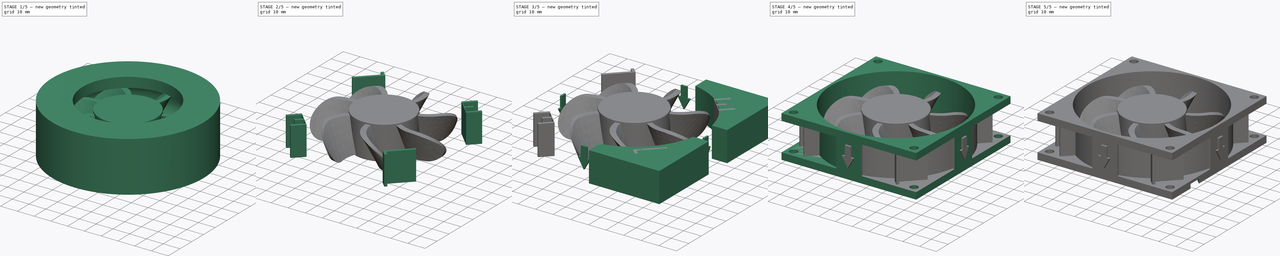
[diagram: build sequence overview — one tinted view per stage of 5, left to right]
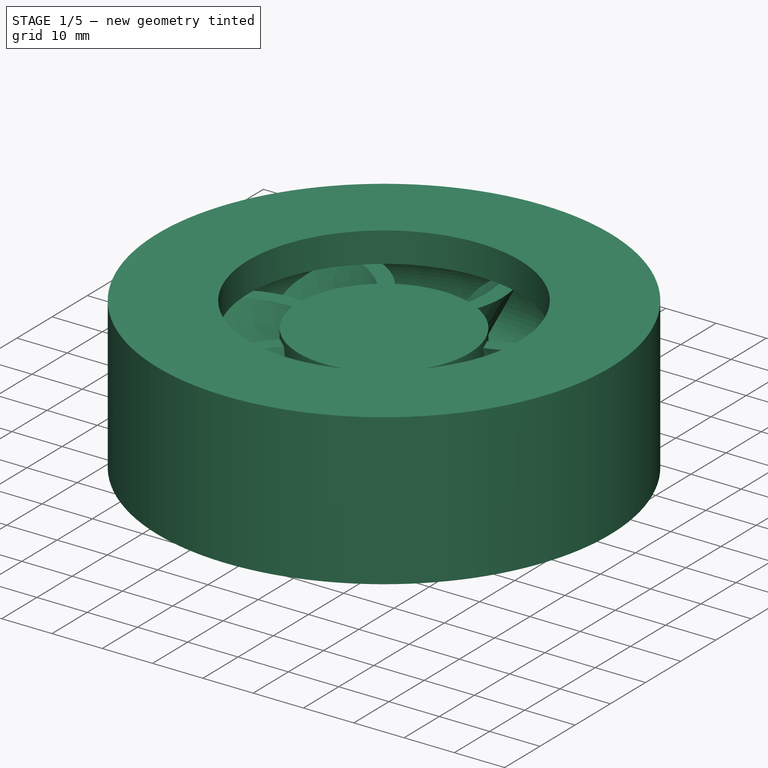
[diagram: stage 1 of 5 — iso view after this stage's code; geometry added in this stage tinted green]
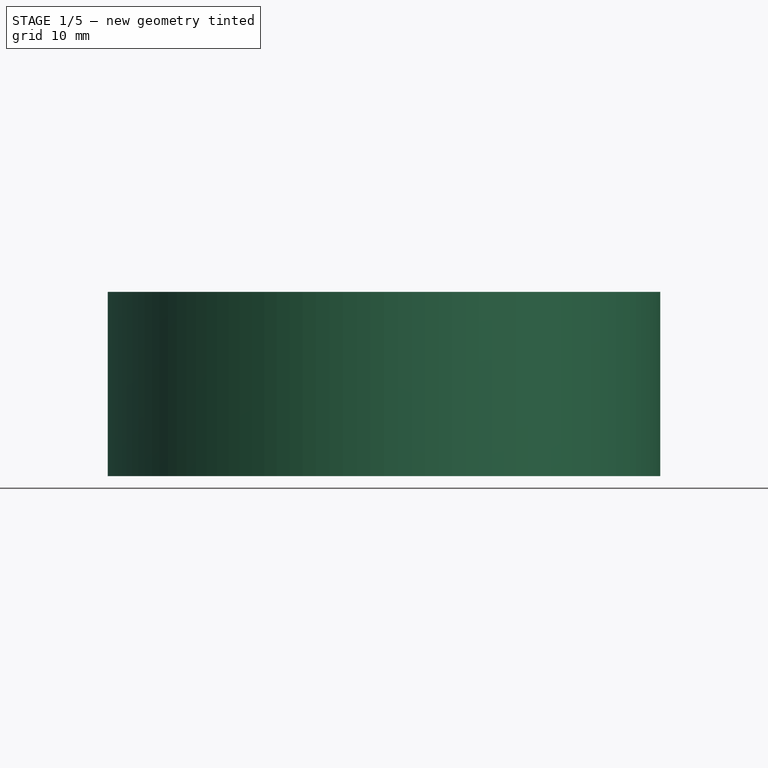
[diagram: stage 1 of 5 — front view after this stage's code; geometry added in this stage tinted green]
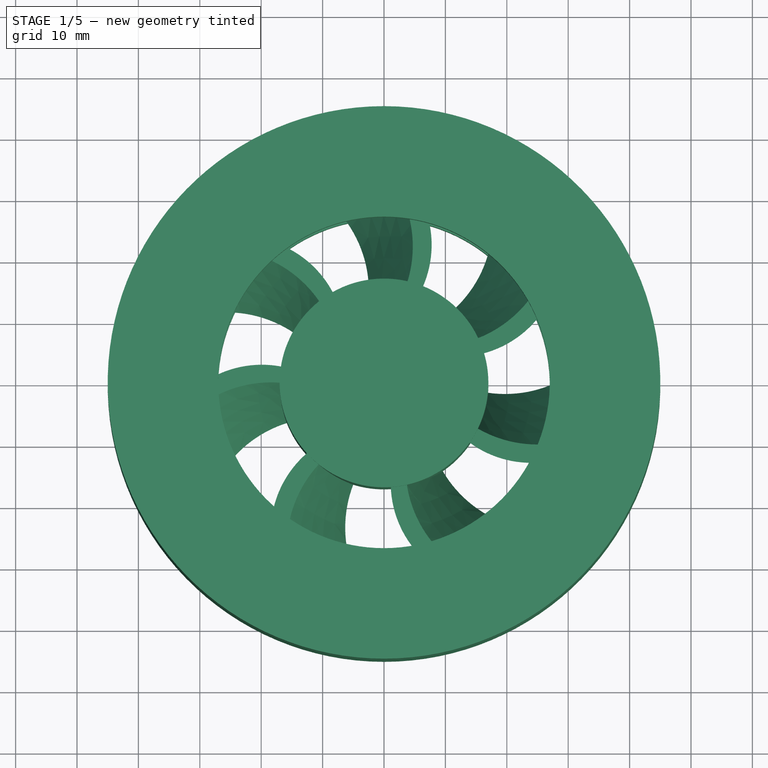
[diagram: stage 1 of 5 — top view after this stage's code; geometry added in this stage tinted green]
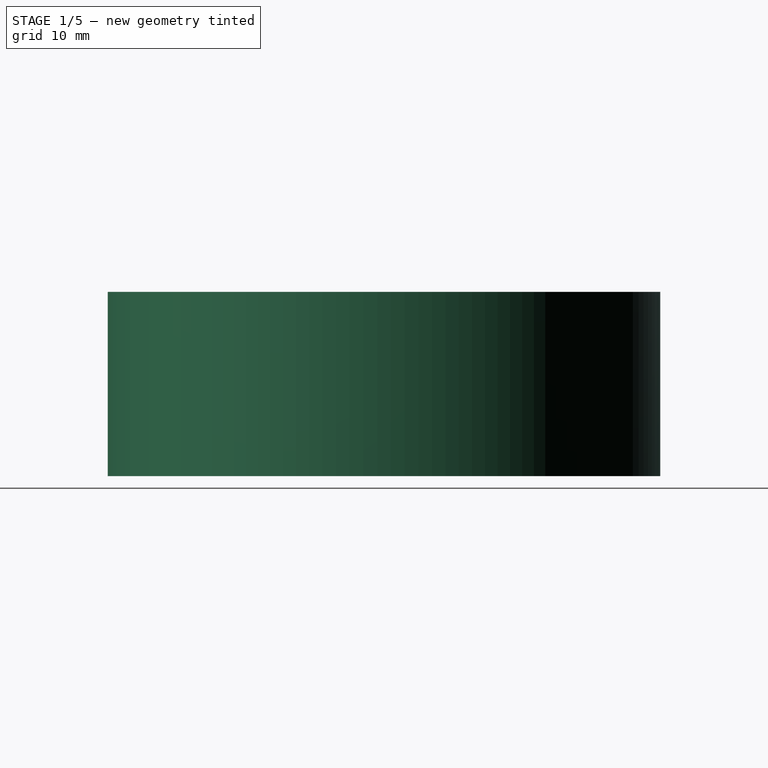
[diagram: stage 1 of 5 — right view after this stage's code; geometry added in this stage tinted green]
FCSTD DOCUMENT  (FreeCAD 0.14R3310 (Git))
Label: 96. VENTILADOR (FAN) 80 X 80
License: CC-BY 3.0
LicenseURL: http://creativecommons.org/licenses/by/3.0/
objects: Sketcher::SketchObject×11, PartDesign::Pad×6, Part::MultiFuse×6, PartDesign::Pocket×3, Part::FeaturePython×3, Part::Mirroring×2, Part::Cut×2, PartDesign::Fillet×2, Part::Helix×1, Part::Sweep×1, PartDesign::Revolution×1
note: 48 computed .brp shape members not serialized (recipe doc carries the construction recipe); baked Part::Feature solids carry a one-line shape summary decoded from their .brp

FEATURE [Sketcher::SketchObject] Sketch008
  Placement = pos=(0,0,3.1) rot=(0,0,1;0rad)
  sketch-geometry (1):
    g0: Circle CenterX=0 CenterY=0 CenterZ=0 NormalX=0 NormalY=0 NormalZ=1 Radius=17
  constraints (2):
    c: Coincident(g0,g-1)
    c: Radius(g0) = 17
FEATURE [PartDesign::Pad] Pad005
  Length = 20
  Length2 = 100
  Placement = pos=(0,0,3.1) rot=(0,0,1;0rad)
  Sketch = -> Sketch008
  Type = 0
FEATURE [Sketcher::SketchObject] Sketch009
  Placement = pos=(0,0,22) rot=(0,0,1;0rad)
  sketch-geometry (6):
    g0: ArcOfCircle [constr] CenterX=0 CenterY=0 CenterZ=0 NormalX=0 NormalY=0 NormalZ=1 Radius=16.9 StartAngle=4.71239 EndAngle=6.28319
    g1: ArcOfCircle CenterX=25 CenterY=9.5 CenterZ=0 NormalX=0 NormalY=0 NormalZ=1 Radius=19.512 StartAngle=4.18652 EndAngle=5.34022
    g2: ArcOfCircle [constr] CenterX=0 CenterY=0 CenterZ=0 NormalX=0 NormalY=0 NormalZ=1 Radius=37 StartAngle=4.71239 EndAngle=6.28319
    g3: ArcOfCircle CenterX=27.3642 CenterY=-2.1386 CenterZ=0 NormalX=0 NormalY=0 NormalZ=1 Radius=10 StartAngle=5.21373 EndAngle=5.85497
    g4: ArcOfCircle CenterX=24 CenterY=4 CenterZ=0 NormalX=0 NormalY=0 NormalZ=1 Radius=17 StartAngle=4.07414 EndAngle=5.21372
    g5: ArcOfCircle CenterX=0 CenterY=0 CenterZ=0 NormalX=0 NormalY=0 NormalZ=1 Radius=16.9 StartAngle=5.67521 EndAngle=5.83156
  constraints (24):
    c: Coincident(g0,g-1)
    c: PointOnObject(g0,g-2)
    c: PointOnObject(g0,g-1)
    c: Radius(g0) = 16.9
    c: PointOnObject(g1,g0)
    c: Coincident(g2,g-1)
    c: PointOnObject(g2,g-1)
    c: PointOnObject(g2,g-2)
    c: Radius(g2) = 37
    c: PointOnObject(g1,g2)
    c: Coincident(g3,g1)
    c: Coincident(g4,g3)
    c: PointOnObject(g4,g0)
    c: Tangent(g4,g3)
    c: Coincident(g5,g-1)
    c: Coincident(g5,g1)
    c: Coincident(g5,g4)
    c: Radius(g1) = 19.512
    c: Radius(g4) = 17
    c: Radius(g3) = 10
    c: DistanceX(g-2,g4) = 24
    c: DistanceX(g-2,g1) = 25
    c: DistanceY(g-1,g4) = 4
    c: DistanceY(g-1,g1) = 9.5
FEATURE [Part::Helix] Helix003  label="H???ce003"
  Angle = 0
  Height = 18
  LocalCoord = 1
  Pitch = 300
  Placement = pos=(0,0,4) rot=(0,0,1;0rad)
  Radius = 17
  Style = 1
FEATURE [Part::Sweep] Sweep
  Frenet = true
  Sections = -> [Sketch009]
  Solid = true
  Spine = -> Helix003 [Edge1]
  Transition = 1
FEATURE [PartDesign::Fillet] Fillet001
  Base = -> Sweep [Edge3]
  Radius = 0.2
FEATURE [Part::FeaturePython] Array002  # Draft array (typed FeaturePython)
  Angle = 360
  ArrayType = 1
  Axis = (0,0,1)
  Base = -> Fillet001
  Center = (0,0,0)
  IntervalX = (1,0,0)
  IntervalY = (0,1,0)
  IntervalZ = (0,0,1)
  NumberPolar = 7
  NumberX = 2
  NumberY = 2
  NumberZ = 1
FEATURE [Sketcher::SketchObject] Sketch010
  Placement = pos=(0,0,0) rot=(0.57735,0.57735,0.57735;2.0944rad)
  sketch-geometry (10):
    g0: LineSegment [constr] StartX=0 StartY=22 StartZ=0 EndX=-27 EndY=22 EndZ=0
    g1: LineSegment [constr] StartX=0 StartY=4 StartZ=0 EndX=-27 EndY=4 EndZ=0
    g2: LineSegment [constr] StartX=-27 StartY=22 StartZ=0 EndX=-27 EndY=4 EndZ=0
    g3: ArcOfCircle CenterX=-27 CenterY=13 CenterZ=0 NormalX=0 NormalY=0 NormalZ=1 Radius=9 StartAngle=1.5708 EndAngle=4.71239
    g4: LineSegment StartX=-45 StartY=28 StartZ=0 EndX=-27 EndY=28 EndZ=0
    g5: LineSegment [constr] StartX=-27 StartY=28 StartZ=0 EndX=-27 EndY=-2 EndZ=0
    g6: LineSegment StartX=-27 StartY=-2 StartZ=0 EndX=-45 EndY=-2 EndZ=0
    g7: LineSegment StartX=-45 StartY=-2 StartZ=0 EndX=-45 EndY=28 EndZ=0
    g8: LineSegment StartX=-27 StartY=22 StartZ=0 EndX=-27 EndY=28 EndZ=0
    g9: LineSegment StartX=-27 StartY=-2 StartZ=0 EndX=-27 EndY=4 EndZ=0
  constraints (28):
    c: PointOnObject(g0,g-2)
    c: Horizontal(g0)
    c: PointOnObject(g1,g-2)
    c: Horizontal(g1)
    c: DistanceY(g-1,g1) = 4
    c: DistanceY(g-1,g0) = 22
    c: Distance(g1) = 27
    c: Equal(g0,g1)
    c: Coincident(g2,g0)
    c: Coincident(g2,g1)
    c: Coincident(g3,g0)
    c: Coincident(g3,g1)
    c: PointOnObject(g3,g2)
    c: Coincident(g4,g5)
    c: Coincident(g5,g6)
    c: Coincident(g6,g7)
    c: Coincident(g7,g4)
    c: Horizontal(g4)
    c: Horizontal(g6)
    c: Vertical(g5)
    c: Vertical(g7)
    c: Symmetric(g5,g4,g3)
    c: Coincident(g8,g0)
    c: Coincident(g8,g4)
    c: Coincident(g9,g5)
    c: Coincident(g9,g1)
    c: Distance(g5) = 30
    c: Distance(g4) = 18
FEATURE [PartDesign::Revolution] Revolution
  Angle = 360
  Axis = (0,0,1)
  Base = (0,0,0)
  Placement = pos=(0,0,0) rot=(0.57735,0.57735,0.57735;2.0944rad)
  ReferenceAxis = -> Sketch010 [V_Axis]
  Sketch = -> Sketch010
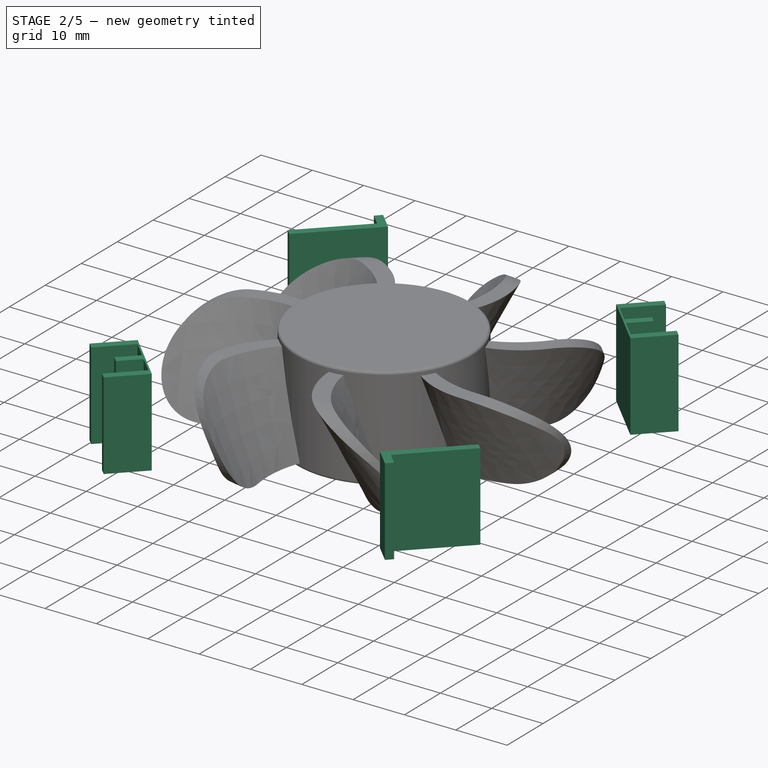
[diagram: stage 2 of 5 — iso view after this stage's code; geometry added in this stage tinted green]
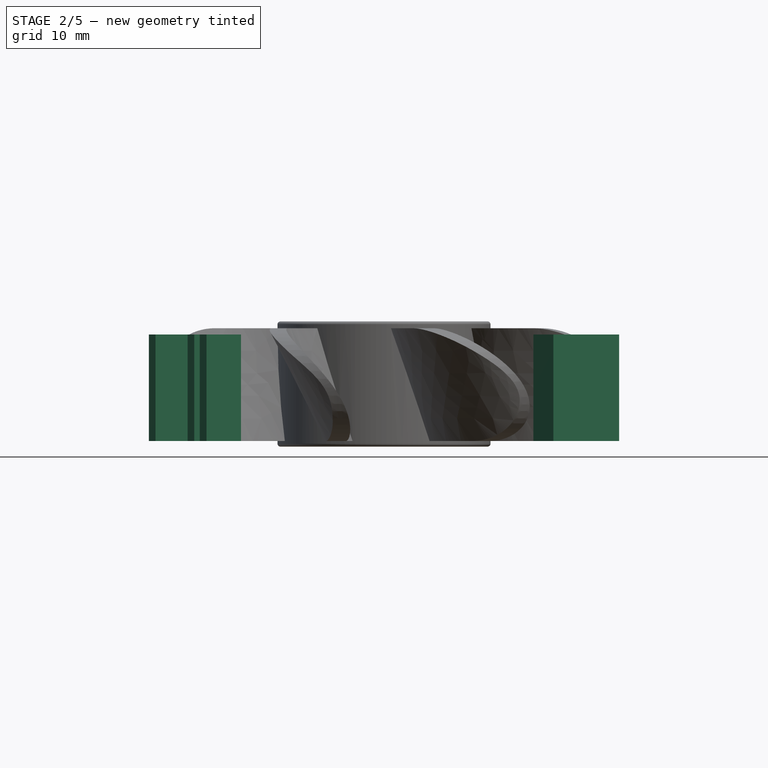
[diagram: stage 2 of 5 — front view after this stage's code; geometry added in this stage tinted green]
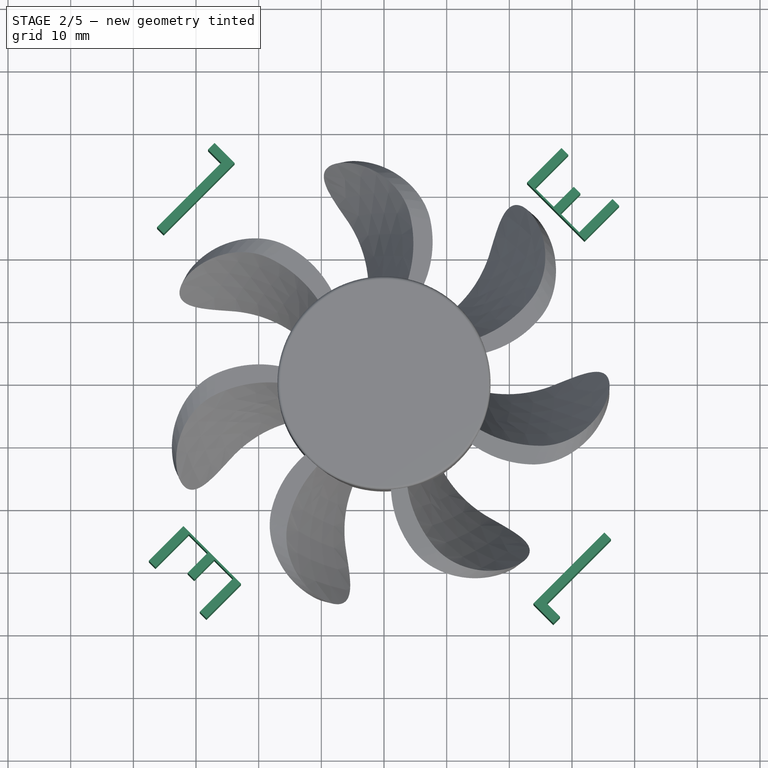
[diagram: stage 2 of 5 — top view after this stage's code; geometry added in this stage tinted green]
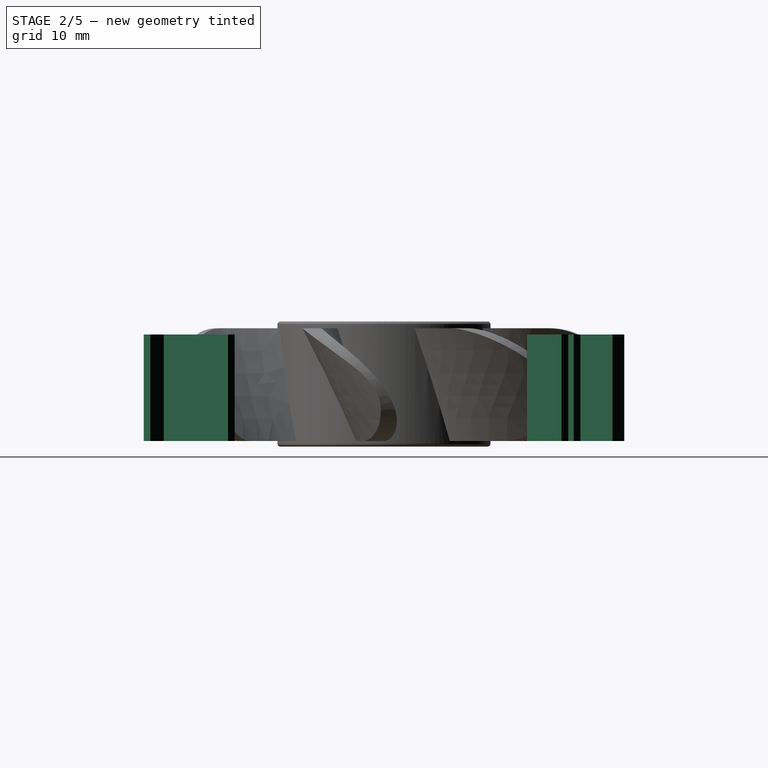
[diagram: stage 2 of 5 — right view after this stage's code; geometry added in this stage tinted green]
FEATURE [Sketcher::SketchObject] Sketch004
  Placement = pos=(0,0,4) rot=(0,0,1;0rad)
  sketch-geometry (24):
    g0: LineSegment [constr] StartX=0 StartY=0 StartZ=0 EndX=56.5685 EndY=56.5685 EndZ=0
    g1: ArcOfCircle [constr] CenterX=0 CenterY=0 CenterZ=0 NormalX=0 NormalY=0 NormalZ=1 Radius=80 StartAngle=0 EndAngle=1.5708
    g2: LineSegment StartX=30.2783 StartY=31.339 StartZ=0 EndX=31.339 EndY=30.2783 EndZ=0
    g3: LineSegment StartX=31.339 StartY=30.2783 StartZ=0 EndX=28.157 EndY=27.0963 EndZ=0
    g4: LineSegment StartX=30.2783 StartY=31.339 StartZ=0 EndX=27.0963 EndY=28.157 EndZ=0
    g5: ArcOfCircle [constr] CenterX=0 CenterY=0 CenterZ=0 NormalX=0 NormalY=0 NormalZ=1 Radius=39.5 StartAngle=0 EndAngle=1.5708
    g6: LineSegment StartX=27.0963 StartY=28.157 StartZ=0 EndX=24.0911 EndY=31.1622 EndZ=0
    g7: LineSegment StartX=28.157 StartY=27.0963 StartZ=0 EndX=31.1622 EndY=24.0911 EndZ=0
    g8: LineSegment StartX=31.1622 StartY=24.0911 StartZ=0 EndX=36.4655 EndY=29.3944 EndZ=0
    g9: LineSegment StartX=36.4655 StartY=29.3944 StartZ=0 EndX=37.5262 EndY=28.3338 EndZ=0
    g10: LineSegment StartX=37.5262 StartY=28.3338 StartZ=0 EndX=32.0107 EndY=22.8183 EndZ=0
    g11: LineSegment StartX=32.0107 StartY=22.8183 StartZ=0 EndX=22.8183 EndY=32.0107 EndZ=0
    g12: LineSegment StartX=22.8183 StartY=32.0107 StartZ=0 EndX=28.3338 EndY=37.5262 EndZ=0
    g13: LineSegment StartX=28.3338 StartY=37.5262 StartZ=0 EndX=29.3944 EndY=36.4655 EndZ=0
    g14: LineSegment StartX=29.3944 StartY=36.4655 StartZ=0 EndX=24.0911 EndY=31.1622 EndZ=0
    g15: ArcOfCircle [constr] CenterX=0 CenterY=0 CenterZ=0 NormalX=0 NormalY=0 NormalZ=1 Radius=39.5 StartAngle=1.5708 EndAngle=3.14159
    g16: LineSegment StartX=-35.156 StartY=23.8423 StartZ=0 EndX=-23.8423 EndY=35.156 EndZ=0
    g17: LineSegment StartX=-23.8423 StartY=35.156 StartZ=0 EndX=-27.0243 EndY=38.338 EndZ=0
    g18: LineSegment StartX=-27.0243 StartY=38.338 StartZ=0 EndX=-28.085 EndY=37.2774 EndZ=0
    g19: LineSegment StartX=-28.085 StartY=37.2774 StartZ=0 EndX=-25.9636 EndY=35.156 EndZ=0
    g20: LineSegment StartX=-25.9636 StartY=35.156 StartZ=0 EndX=-36.2167 EndY=24.903 EndZ=0
    g21: LineSegment StartX=-36.2167 StartY=24.903 StartZ=0 EndX=-35.156 EndY=23.8423 EndZ=0
    g22: Circle [constr] CenterX=-35.75 CenterY=35.75 CenterZ=0 NormalX=0 NormalY=0 NormalZ=1 Radius=2.25
    g23: LineSegment [constr] StartX=-35.75 StartY=35.75 StartZ=0 EndX=0 EndY=0 EndZ=0
  constraints (73):
    c: Coincident(g0,g-1)
    c: Coincident(g1,g-1)
    c: PointOnObject(g0,g1)
    c: Radius(g1) = 80
    c: Angle(g-1,g0) = 0.785398
    c: PointOnObject(g1,g-1)
    c: PointOnObject(g1,g-2)
    c: Angle(g2,g0) = 1.5708
    c: Distance(g-1,g2) = 43.57
    c: Distance(g2) = 1.5
    c: Symmetric(g2,g2,g0)
    c: Coincident(g3,g2)
    c: Coincident(g4,g2)
    c: Parallel(g4,g3)
    c: Equal(g3,g4)
    c: Coincident(g5,g-1)
    c: PointOnObject(g5,g-1)
    c: PointOnObject(g5,g-2)
    c: Radius(g5) = 39.5
    c: Parallel(g0,g3)
    c: Distance(g3) = 4.5
    c: Coincident(g6,g4)
    c: Coincident(g7,g3)
    c: Angle(g7,g3) = 1.5708
    c: Angle(g4,g6) = 1.5708
    c: Distance(g6) = 4.25
    c: Distance(g7) = 4.25
    c: Coincident(g7,g8)
    c: Coincident(g8,g9)
    c: Coincident(g9,g10)
    c: Coincident(g10,g11)
    c: Coincident(g11,g12)
    c: Coincident(g12,g13)
    c: Coincident(g13,g14)
    c: Coincident(g14,g6)
    c: Angle(g13,g14) = 1.5708
    c: Angle(g8,g7) = 1.5708
    c: Angle(g8,g9) = 1.5708
    c: Angle(g9,g10) = 1.5708
    c: Angle(g10,g11) = 1.5708
    c: Angle(g11,g12) = 1.5708
    c: Angle(g12,g13) = 1.5708
    c: Distance(g2,g13) = 3
    c: Symmetric(g13,g8,g0)
    c: Distance(g9) = 1.5
    c: Equal(g13,g9)
    c: Distance(g7,g11) = 0.3
    c: Coincident(g15,g-1)
    c: Coincident(g15,g5)
    c: PointOnObject(g15,g-1)
    c: Coincident(g17,g16)
    c: Coincident(g18,g17)
    c: Coincident(g19,g18)
    c: Coincident(g20,g19)
    c: Coincident(g21,g20)
    c: Coincident(g21,g16)
    c: Parallel(g21,g17)
    c: Parallel(g17,g19)
    c: Parallel(g16,g20)
    c: Parallel(g20,g18)
    c: Angle(g-1,g16) = 0.785398
    c: Angle(g16,g21) = 1.5708
    c: Distance(g21) = 1.5
    c: Distance(g18) = 1.5
    c: Radius(g22) = 2.25
    c: DistanceY(g-1,g22) = 35.75
    c: DistanceX(g-2,g22) = -35.75
    c: Coincident(g23,g22)
    c: Symmetric(g16,g16,g23)
    c: Distance(g16) = 16
    c: Distance(g17) = 4.5
    c: Distance(g22,g20) = 7.34
    c: Coincident(g23,g-1)
FEATURE [PartDesign::Pad] Pad003
  Length = 17
  Length2 = 100
  Placement = pos=(0,0,4) rot=(0,0,1;0rad)
  Sketch = -> Sketch004
  Type = 0
FEATURE [Part::FeaturePython] Array001  # Draft array (typed FeaturePython)
  Angle = 360
  ArrayType = 1
  Axis = (0,0,1)
  Base = -> Pad003
  Center = (0,0,0)
  IntervalX = (1,0,0)
  IntervalY = (0,1,0)
  IntervalZ = (0,0,1)
  NumberPolar = 2
  NumberX = 2
  NumberY = 2
  NumberZ = 1
FEATURE [PartDesign::Fillet] Fillet
  Base = -> Pad005 [Edge2,Edge3]
  Placement = pos=(0,0,3.1) rot=(0,0,1;0rad)
  Radius = 0.5
FEATURE [Part::MultiFuse] Fusion004
  Shapes = -> [Array002,Fillet]
FEATURE [Part::Cut] Cut001
  Base = -> Fusion004
  Tool = -> Revolution
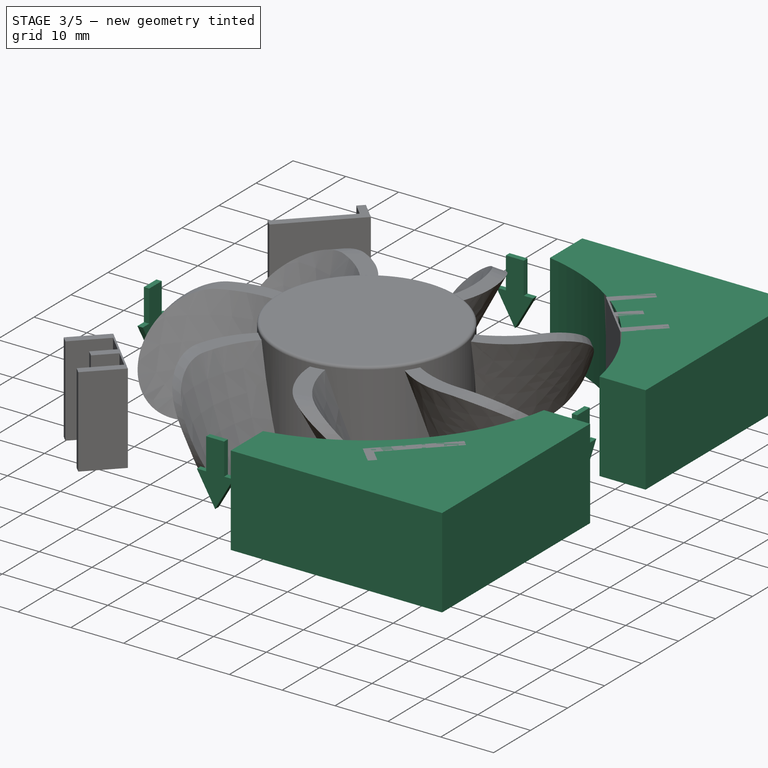
[diagram: stage 3 of 5 — iso view after this stage's code; geometry added in this stage tinted green]
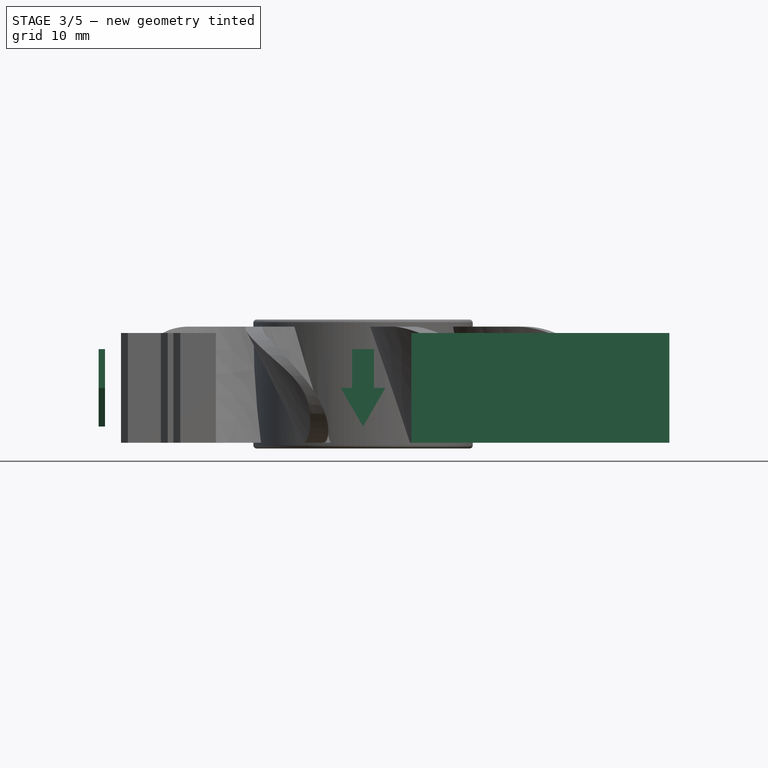
[diagram: stage 3 of 5 — front view after this stage's code; geometry added in this stage tinted green]
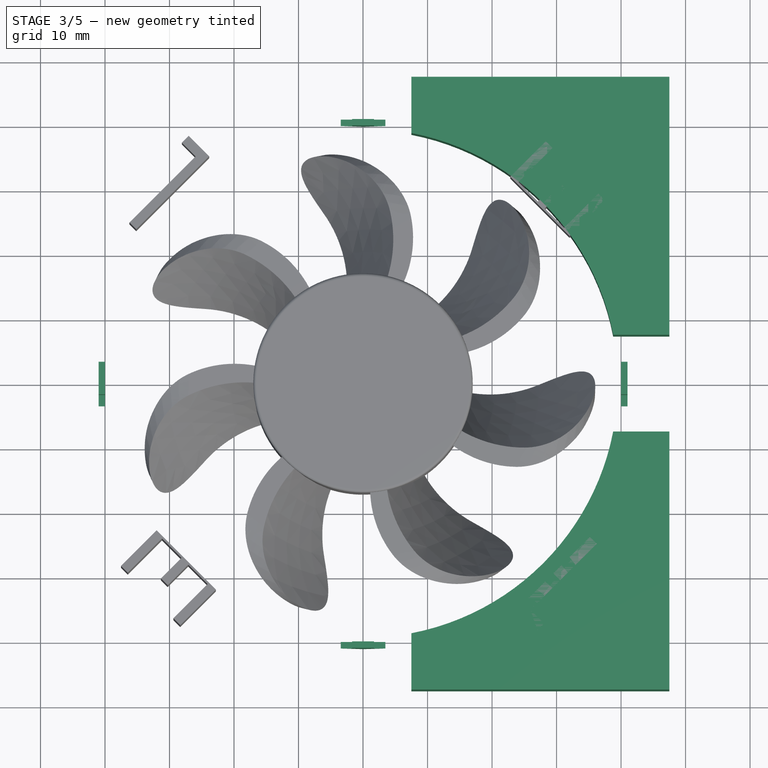
[diagram: stage 3 of 5 — top view after this stage's code; geometry added in this stage tinted green]
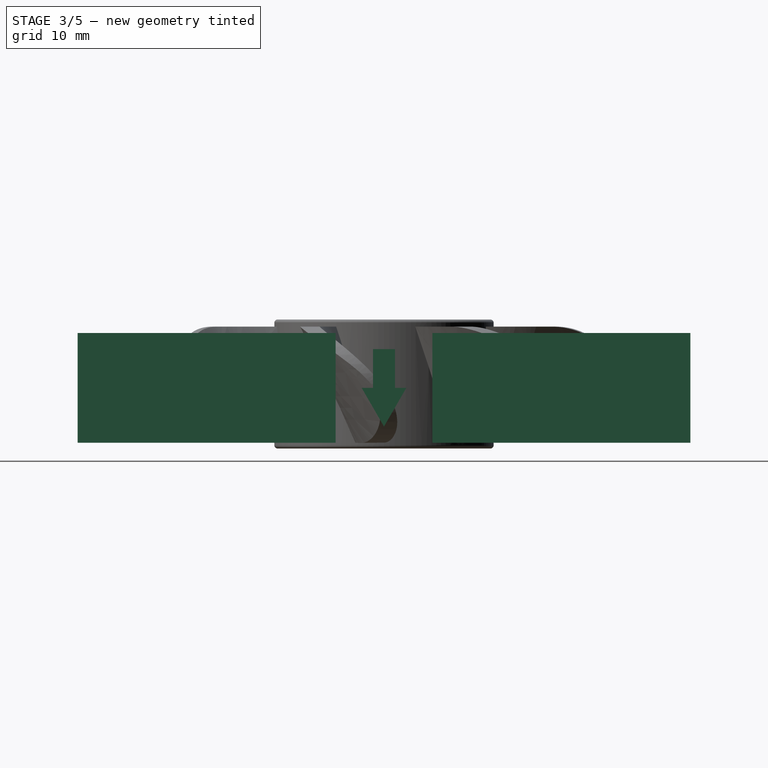
[diagram: stage 3 of 5 — right view after this stage's code; geometry added in this stage tinted green]
FEATURE [Sketcher::SketchObject] Sketch001
  Placement = pos=(0,0,25) rot=(0,0,1;0rad)
  Support = -> Pad [Face10]
  sketch-geometry (1):
    g0: Circle CenterX=0 CenterY=0 CenterZ=0 NormalX=0 NormalY=0 NormalZ=1 Radius=38.5
  constraints (2):
    c: Coincident(g0,g-1)
    c: Radius(g0) = 38.5
FEATURE [Sketcher::SketchObject] Sketch002
  Placement = pos=(0,0,4) rot=(0,0,1;0rad)
  sketch-geometry (10):
    g0: ArcOfCircle CenterX=0 CenterY=0 CenterZ=0 NormalX=0 NormalY=0 NormalZ=1 Radius=39.5 StartAngle=1.76183 EndAngle=2.95056
    g1: LineSegment [constr] StartX=0 StartY=39.2906 StartZ=0 EndX=-7.5 EndY=39.2906 EndZ=0
    g2: ArcOfCircle [constr] CenterX=0 CenterY=0 CenterZ=0 NormalX=0 NormalY=0 NormalZ=1 Radius=40 StartAngle=1.75941 EndAngle=2.95298
    g3: LineSegment [constr] StartX=-39.2906 StartY=7.5 StartZ=0 EndX=-39.2906 EndY=0 EndZ=0
    g4: LineSegment StartX=-39.2906 StartY=7.5 StartZ=0 EndX=-38.7814 EndY=7.5 EndZ=0
    g5: LineSegment StartX=-7.5 StartY=39.2906 StartZ=0 EndX=-7.5 EndY=38.7814 EndZ=0
    g6: LineSegment StartX=-39.2906 StartY=7.5 StartZ=0 EndX=-47.5 EndY=7.5 EndZ=0
    g7: LineSegment StartX=-7.5 StartY=39.2906 StartZ=0 EndX=-7.5 EndY=47.5 EndZ=0
    g8: LineSegment StartX=-7.5 StartY=47.5 StartZ=0 EndX=-47.5 EndY=47.5 EndZ=0
    g9: LineSegment StartX=-47.5 StartY=47.5 StartZ=0 EndX=-47.5 EndY=7.5 EndZ=0
  constraints (29):
    c: Coincident(g0,g-1)
    c: Radius(g0) = 39.5
    c: PointOnObject(g1,g-2)
    c: Horizontal(g1)
    c: Distance(g1) = 7.5
    c: Coincident(g2,g-1)
    c: Coincident(g2,g1)
    c: Coincident(g3,g2)
    c: PointOnObject(g3,g-1)
    c: Vertical(g3)
    c: Equal(g3,g1)
    c: Radius(g2) = 40
    c: Coincident(g4,g2)
    c: Horizontal(g4)
    c: Coincident(g0,g4)
    c: Coincident(g5,g1)
    c: Vertical(g5)
    c: Coincident(g5,g0)
    c: Coincident(g6,g2)
    c: Horizontal(g6)
    c: Coincident(g7,g1)
    c: Vertical(g7)
    c: Coincident(g8,g7)
    c: Horizontal(g8)
    c: Coincident(g9,g8)
    c: Coincident(g9,g6)
    c: Vertical(g9)
    c: Equal(g6,g7)
    c: Distance(g8) = 40
FEATURE [PartDesign::Pad] Pad001
  Length = 17
  Length2 = 100
  Placement = pos=(0,0,4) rot=(0,0,1;0rad)
  Sketch = -> Sketch002
  Type = 0
FEATURE [Part::Mirroring] Part__Mirroring  label="Pad001 (Mirror #1)"
  Base = (0,0,0)
  Normal = (0,1,0)
  Source = -> Pad001
FEATURE [Part::MultiFuse] Fusion
  Shapes = -> [Pad001,Part__Mirroring]
FEATURE [Part::Mirroring] Part__Mirroring001  label="Fusion (Mirror #2)"
  Base = (0,0,0)
  Normal = (1,0,0)
  Source = -> Fusion
FEATURE [Sketcher::SketchObject] Sketch003
  Placement = pos=(0,41,0) rot=(1,0,0;1.5708rad)
  sketch-geometry (7):
    g0: LineSegment StartX=1.7 StartY=18.5 StartZ=0 EndX=-1.7 EndY=18.5 EndZ=0
    g1: LineSegment StartX=-1.7 StartY=18.5 StartZ=0 EndX=-1.7 EndY=12.5 EndZ=0
    g2: LineSegment StartX=-1.7 StartY=12.5 StartZ=0 EndX=-3.46 EndY=12.5 EndZ=0
    g3: LineSegment StartX=-3.46 StartY=12.5 StartZ=0 EndX=0 EndY=6.5071 EndZ=0
    g4: LineSegment StartX=0 StartY=6.5071 StartZ=0 EndX=3.46 EndY=12.5 EndZ=0
    g5: LineSegment StartX=3.46 StartY=12.5 StartZ=0 EndX=1.7 EndY=12.5 EndZ=0
    g6: LineSegment StartX=1.7 StartY=12.5 StartZ=0 EndX=1.7 EndY=18.5 EndZ=0
  constraints (20):
    c: Horizontal(g0)
    c: Coincident(g0,g1)
    c: Vertical(g1)
    c: Coincident(g1,g2)
    c: Horizontal(g2)
    c: Coincident(g2,g3)
    c: Coincident(g3,g4)
    c: Coincident(g4,g5)
    c: Coincident(g5,g6)
    c: Vertical(g6)
    c: Coincident(g6,g0)
    c: Distance(g0) = 3.4
    c: Symmetric(g0,g0,g-2)
    c: Symmetric(g4,g2,g-2)
    c: Horizontal(g5)
    c: Distance(g5) = 1.76
    c: Distance(g6) = 6
    c: PointOnObject(g3,g-2)
    c: DistanceY(g-1,g0) = 18.5
    c: Angle(g4,g3) = 1.0472
FEATURE [PartDesign::Pad] Pad002
  Length = 1
  Length2 = 100
  Placement = pos=(0,41,0) rot=(1,0,0;1.5708rad)
  Sketch = -> Sketch003
  Type = 0
FEATURE [Part::FeaturePython] Array  # Draft array (typed FeaturePython)
  Angle = 360
  ArrayType = 1
  Axis = (0,0,1)
  Base = -> Pad002
  Center = (0,0,0)
  IntervalX = (1,0,0)
  IntervalY = (0,1,0)
  IntervalZ = (0,0,1)
  NumberPolar = 4
  NumberX = 2
  NumberY = 2
  NumberZ = 1
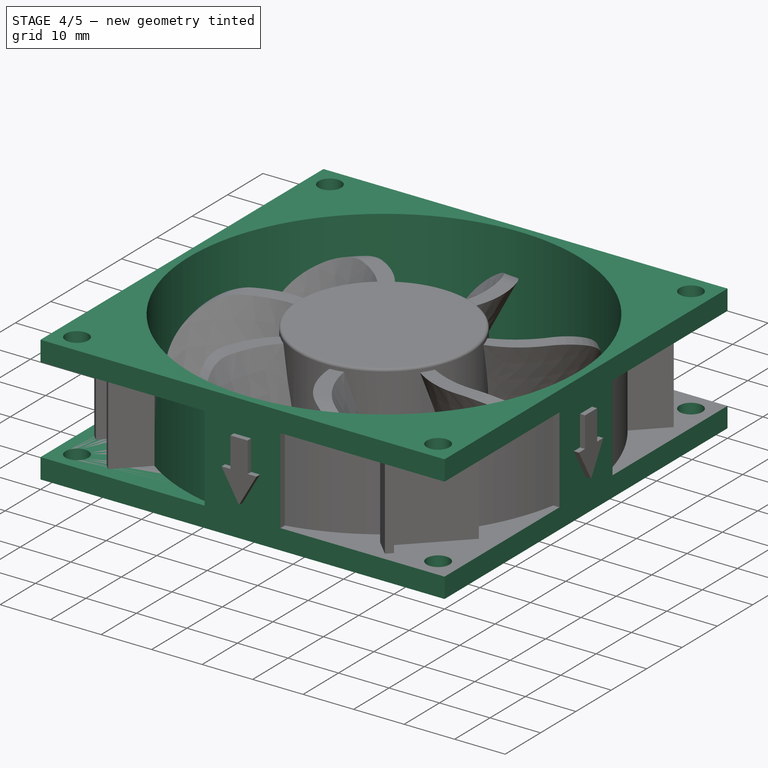
[diagram: stage 4 of 5 — iso view after this stage's code; geometry added in this stage tinted green]
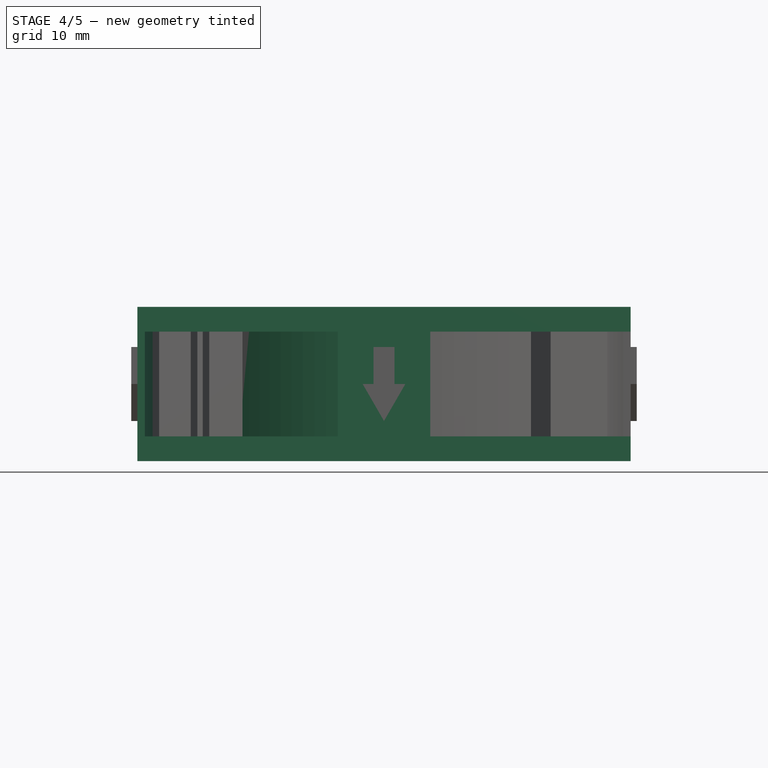
[diagram: stage 4 of 5 — front view after this stage's code; geometry added in this stage tinted green]
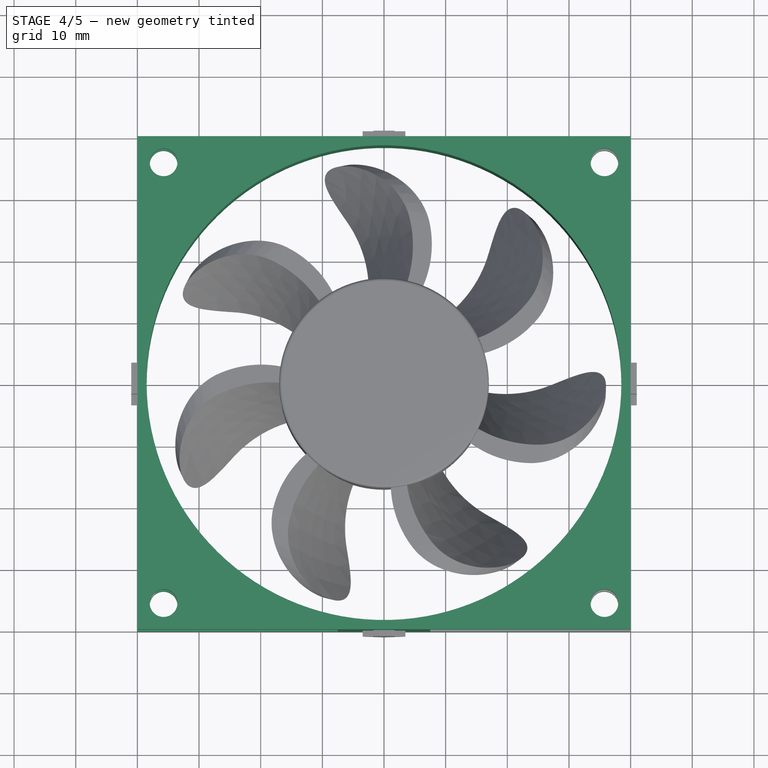
[diagram: stage 4 of 5 — top view after this stage's code; geometry added in this stage tinted green]
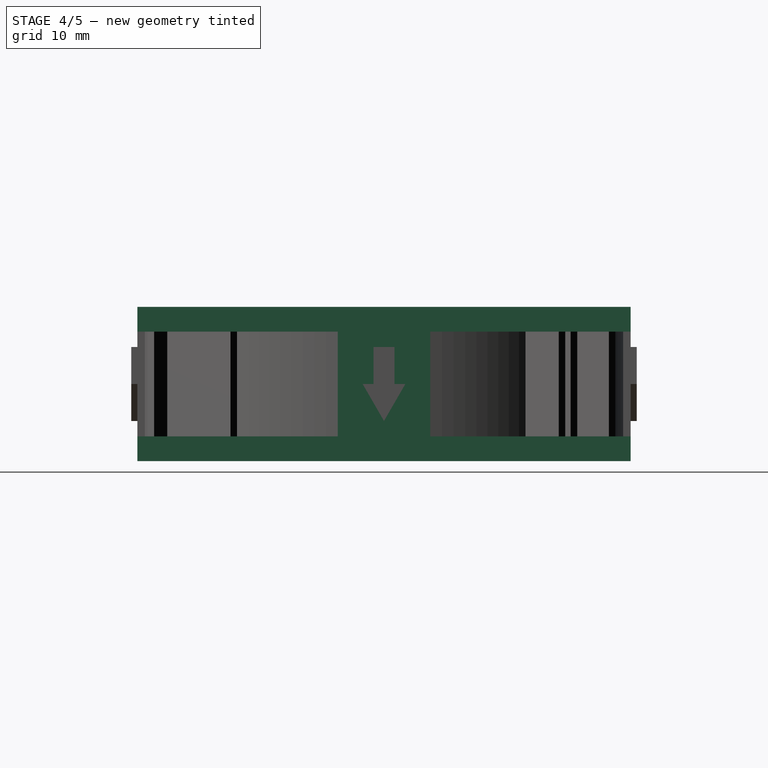
[diagram: stage 4 of 5 — right view after this stage's code; geometry added in this stage tinted green]
FEATURE [Sketcher::SketchObject] Sketch
  sketch-geometry (8):
    g0: LineSegment StartX=-40 StartY=40 StartZ=0 EndX=40 EndY=40 EndZ=0
    g1: LineSegment StartX=40 StartY=40 StartZ=0 EndX=40 EndY=-40 EndZ=0
    g2: LineSegment StartX=40 StartY=-40 StartZ=0 EndX=-40 EndY=-40 EndZ=0
    g3: LineSegment StartX=-40 StartY=-40 StartZ=0 EndX=-40 EndY=40 EndZ=0
    g4: Circle CenterX=-35.75 CenterY=35.75 CenterZ=0 NormalX=0 NormalY=0 NormalZ=1 Radius=2.25
    g5: Circle CenterX=35.75 CenterY=35.75 CenterZ=0 NormalX=0 NormalY=0 NormalZ=1 Radius=2.25
    g6: Circle CenterX=-35.75 CenterY=-35.75 CenterZ=0 NormalX=0 NormalY=0 NormalZ=1 Radius=2.25
    g7: Circle CenterX=35.75 CenterY=-35.75 CenterZ=0 NormalX=0 NormalY=0 NormalZ=1 Radius=2.25
  constraints (20):
    c: Coincident(g0,g1)
    c: Coincident(g1,g2)
    c: Coincident(g2,g3)
    c: Coincident(g3,g0)
    c: Horizontal(g0)
    c: Horizontal(g2)
    c: Vertical(g1)
    c: Vertical(g3)
    c: Symmetric(g1,g0,g-1)
    c: Equal(g0,g1)
    c: Distance(g1) = 80
    c: Symmetric(g7,g6,g-2)
    c: Symmetric(g6,g4,g-1)
    c: Symmetric(g4,g5,g-2)
    c: Equal(g5,g4)
    c: Equal(g4,g6)
    c: Equal(g6,g7)
    c: Distance(g4,g5) = 71.5
    c: Distance(g4,g6) = 71.5
    c: Radius(g7) = 2.25
FEATURE [PartDesign::Pad] Pad
  Length = 25
  Length2 = 100
  Sketch = -> Sketch
  Type = 0
FEATURE [PartDesign::Pocket] Pocket
  Length = 5
  Sketch = -> Sketch001
  Type = 1
FEATURE [Part::MultiFuse] Fusion001
  Shapes = -> [Fusion,Part__Mirroring001]
FEATURE [Part::Cut] Cut
  Base = -> Pocket
  Tool = -> Fusion001
FEATURE [Part::MultiFuse] Fusion002
  Shapes = -> [Cut,Array]
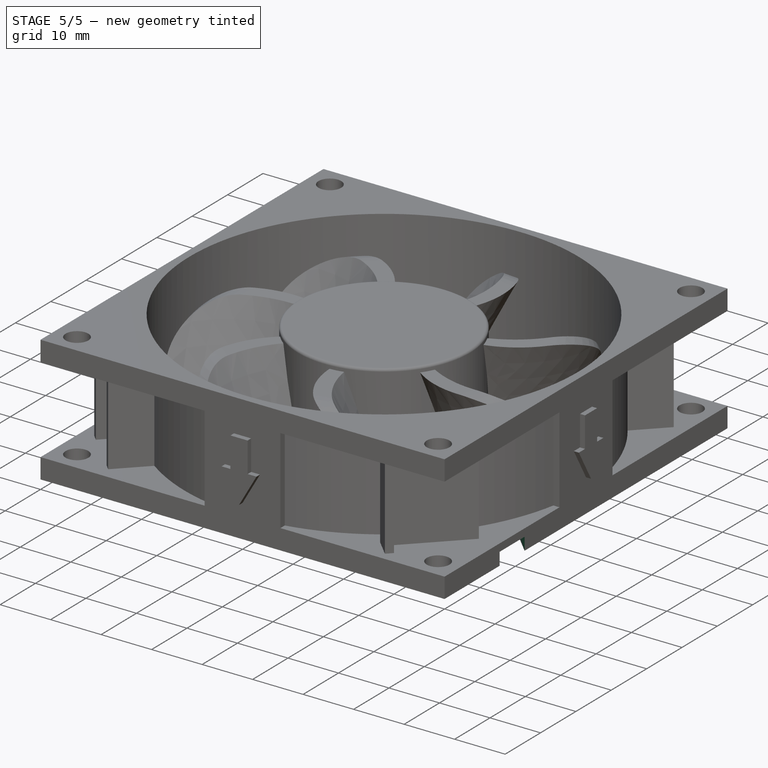
[diagram: stage 5 of 5 — iso view after this stage's code; geometry added in this stage tinted green]
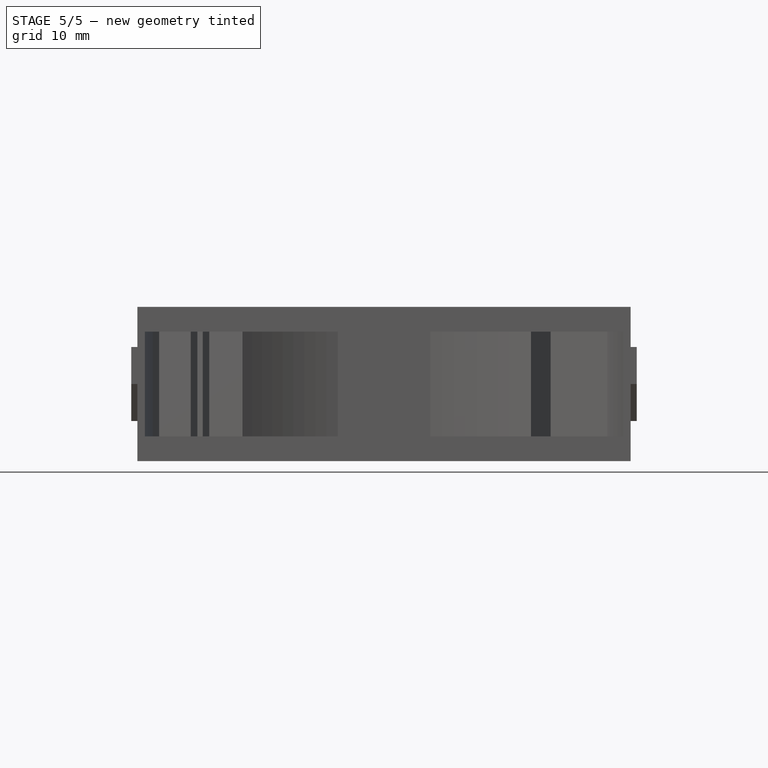
[diagram: stage 5 of 5 — front view after this stage's code; geometry added in this stage tinted green]
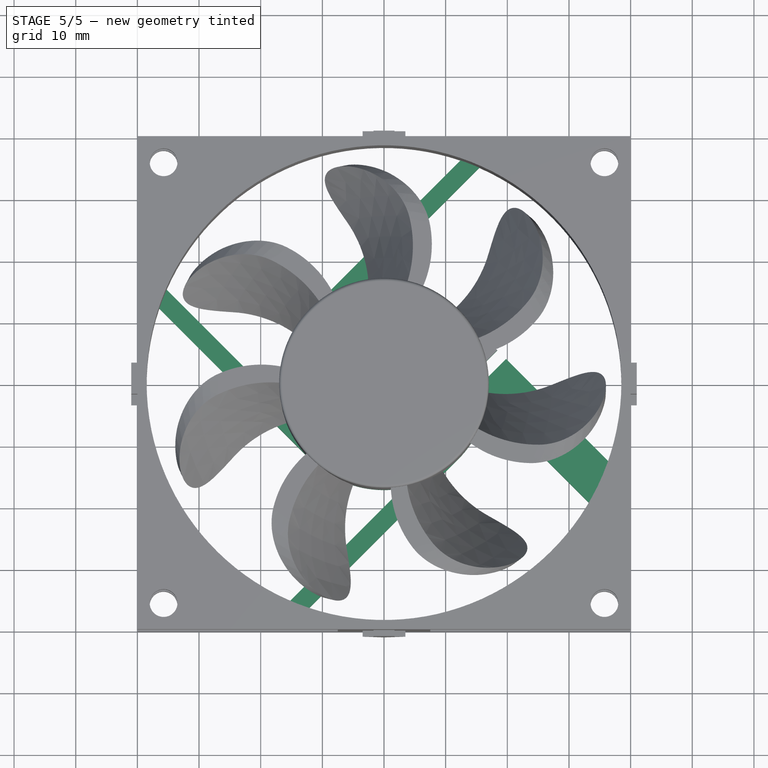
[diagram: stage 5 of 5 — top view after this stage's code; geometry added in this stage tinted green]
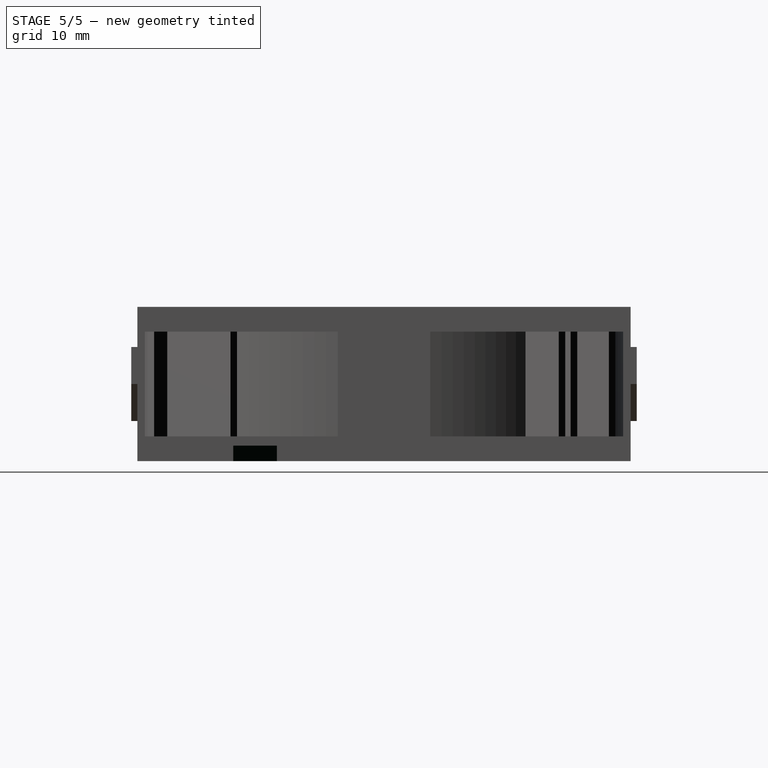
[diagram: stage 5 of 5 — right view after this stage's code; geometry added in this stage tinted green]
FEATURE [Part::MultiFuse] Fusion003
  Shapes = -> [Fusion002,Array001]
FEATURE [Sketcher::SketchObject] Sketch005
  ExternalGeometry = -> [Fusion003]
  Placement = pos=(0,0,0) rot=(1,0,0;3.14159rad)
  Support = -> Fusion003 [Face1]
  sketch-geometry (24):
    g0: Circle [constr] CenterX=0 CenterY=0 CenterZ=0 NormalX=0 NormalY=0 NormalZ=1 Radius=17
    g1: LineSegment StartX=12.0208 StartY=12.0208 StartZ=0 EndX=-12.4051 EndY=36.4467 EndZ=0
    g2: LineSegment StartX=-12.0208 StartY=12.0208 StartZ=0 EndX=-36.4467 EndY=-12.4051 EndZ=0
    g3: LineSegment StartX=-12.0208 StartY=-12.0208 StartZ=0 EndX=12.4051 EndY=-36.4467 EndZ=0
    g4: LineSegment [constr] StartX=12.0208 StartY=-12.0208 StartZ=0 EndX=36.4467 EndY=12.4051 EndZ=0
    g5: LineSegment [constr] StartX=12.0208 StartY=12.0208 StartZ=0 EndX=-12.0208 EndY=-12.0208 EndZ=0
    g6: LineSegment [constr] StartX=-12.0208 StartY=12.0208 StartZ=0 EndX=12.0208 EndY=-12.0208 EndZ=0
    g7: LineSegment StartX=3.0804 StartY=16.7186 StartZ=0 EndX=-15.4604 EndY=35.2594 EndZ=0
    g8: LineSegment StartX=-16.7186 StartY=3.08041 StartZ=0 EndX=-35.2594 EndY=-15.4604 EndZ=0
    g9: LineSegment StartX=-3.0804 StartY=-16.7186 StartZ=0 EndX=15.4604 EndY=-35.2594 EndZ=0
    g10: LineSegment StartX=16.7922 StartY=2.65004 StartZ=0 EndX=33.3603 EndY=19.2182 EndZ=0
    g11: LineSegment StartX=36.4467 StartY=12.4051 StartZ=0 EndX=19.8014 EndY=-4.2402 EndZ=0
    g12: LineSegment StartX=19.8014 StartY=-4.2402 StartZ=0 EndX=15.5588 EndY=0.00243894 EndZ=0
    g13: LineSegment StartX=15.5588 StartY=0.00243894 StartZ=0 EndX=14.1446 EndY=-1.41177 EndZ=0
    g14: LineSegment StartX=14.1446 StartY=-1.41177 StartZ=0 EndX=18.3872 EndY=-5.65442 EndZ=0
    g15: LineSegment StartX=18.3872 StartY=-5.65442 StartZ=0 EndX=12.0208 EndY=-12.0208 EndZ=0
    g16: ArcOfCircle CenterX=0 CenterY=0 CenterZ=0 NormalX=0 NormalY=0 NormalZ=1 Radius=38.5 StartAngle=1.89886 EndAngle=1.98403
    g17: ArcOfCircle CenterX=0 CenterY=0 CenterZ=0 NormalX=0 NormalY=0 NormalZ=1 Radius=38.5 StartAngle=3.46966 EndAngle=3.55482
    g18: ArcOfCircle CenterX=0 CenterY=0 CenterZ=0 NormalX=0 NormalY=0 NormalZ=1 Radius=38.5 StartAngle=0.328063 EndAngle=0.522645
    g19: ArcOfCircle CenterX=0 CenterY=0 CenterZ=0 NormalX=0 NormalY=0 NormalZ=1 Radius=38.5 StartAngle=5.04045 EndAngle=5.12562
    g20: ArcOfCircle CenterX=0 CenterY=0 CenterZ=0 NormalX=0 NormalY=0 NormalZ=1 Radius=17 StartAngle=1.38859 EndAngle=2.35619
    g21: ArcOfCircle CenterX=0 CenterY=0 CenterZ=0 NormalX=0 NormalY=0 NormalZ=1 Radius=17 StartAngle=2.95939 EndAngle=3.92699
    g22: ArcOfCircle CenterX=0 CenterY=0 CenterZ=0 NormalX=0 NormalY=0 NormalZ=1 Radius=17 StartAngle=0.156523 EndAngle=0.785398
    g23: ArcOfCircle CenterX=0 CenterY=0 CenterZ=0 NormalX=0 NormalY=0 NormalZ=1 Radius=17 StartAngle=4.53018 EndAngle=5.49779
  constraints (77):
    c: Coincident(g0,g-1)
    c: Radius(g0) = 17
    c: PointOnObject(g1,g0)
    c: PointOnObject(g1,g-3)
    c: Tangent(g1,g0)
    c: PointOnObject(g2,g0)
    c: PointOnObject(g2,g-3)
    c: Tangent(g2,g0)
    c: PointOnObject(g3,g0)
    c: PointOnObject(g3,g-3)
    c: Tangent(g3,g0)
    c: PointOnObject(g4,g0)
    c: PointOnObject(g4,g-3)
    c: Tangent(g4,g0)
    c: Coincident(g5,g1)
    c: Coincident(g5,g3)
    c: PointOnObject(g-1,g5)
    c: Angle(g-1,g5) = 0.785398
    c: PointOnObject(g6,g0)
    c: Coincident(g4,g6)
    c: Coincident(g2,g6)
    c: PointOnObject(g-1,g6)
    c: Angle(g6,g-1) = 0.785398
    c: PointOnObject(g7,g0)
    c: PointOnObject(g7,g-3)
    c: Parallel(g7,g1)
    c: Distance(g7,g1) = 3
    c: PointOnObject(g8,g0)
    c: PointOnObject(g8,g-3)
    c: Parallel(g8,g2)
    c: Distance(g8,g2) = 3
    c: PointOnObject(g9,g0)
    c: PointOnObject(g9,g-3)
    c: Parallel(g9,g3)
    c: Distance(g9,g3) = 3
    c: PointOnObject(g10,g0)
    c: PointOnObject(g10,g-3)
    c: Parallel(g10,g4)
    c: Distance(g10,g4) = 7
    c: Coincident(g11,g4)
    c: Distance(g11) = 23.54
    c: PointOnObject(g11,g4)
    c: Coincident(g12,g11)
    c: Coincident(g13,g12)
    c: Coincident(g14,g13)
    c: PointOnObject(g14,g4)
    c: Angle(g13,g12) = 1.5708
    c: Angle(g14,g13) = 1.5708
    c: Coincident(g15,g14)
    c: Coincident(g15,g4)
    c: Distance(g12) = 6
    c: Angle(g4,g12) = 1.5708
    c: Distance(g13) = 2
    c: Coincident(g16,g-1)
    c: Coincident(g16,g1)
    c: Coincident(g16,g7)
    c: PointOnObject(g17,g6)
    c: Coincident(g17,g2)
    c: Coincident(g17,g8)
    c: Coincident(g18,g-1)
    c: Coincident(g18,g4)
    c: Coincident(g18,g10)
    c: Coincident(g19,g-1)
    c: Coincident(g19,g3)
    c: Coincident(g19,g9)
    c: Coincident(g20,g-1)
    c: Coincident(g20,g7)
    c: Coincident(g20,g2)
    c: Coincident(g21,g-1)
    c: Coincident(g21,g8)
    c: Coincident(g21,g3)
    c: Coincident(g22,g-1)
    c: Coincident(g22,g10)
    c: Coincident(g22,g1)
    c: Coincident(g23,g-1)
    c: Coincident(g23,g9)
    c: Coincident(g23,g4)
FEATURE [PartDesign::Pad] Pad004
  Length = 3
  Length2 = 100
  Reversed = true
  Sketch = -> Sketch005
  Type = 0
FEATURE [Sketcher::SketchObject] Sketch006
  ExternalGeometry = -> [Pad004]
  Placement = pos=(7.78062,-7.78061,0) rot=(-0.281085,0.678598,0.678598;3.68962rad)
  Support = -> Pad004 [Face8]
  sketch-geometry (4):
    g0: LineSegment StartX=-16 StartY=2.5 StartZ=0 EndX=-11 EndY=2.5 EndZ=0
    g1: LineSegment StartX=-11 StartY=2.5 StartZ=0 EndX=-11 EndY=1 EndZ=0
    g2: LineSegment StartX=-11 StartY=1 StartZ=0 EndX=-16 EndY=1 EndZ=0
    g3: LineSegment StartX=-16 StartY=1 StartZ=0 EndX=-16 EndY=2.5 EndZ=0
  constraints (12):
    c: Coincident(g0,g1)
    c: Coincident(g1,g2)
    c: Coincident(g2,g3)
    c: Coincident(g3,g0)
    c: Horizontal(g0)
    c: Horizontal(g2)
    c: Vertical(g1)
    c: Vertical(g3)
    c: Distance(g-3,g0) = 0.5
    c: DistanceY(g-1,g2) = 1
    c: Distance(g0) = 5
    c: Distance(g0,g-3) = 1
FEATURE [PartDesign::Pocket] Pocket001
  Length = 5
  Sketch = -> Sketch006
  Type = 1
FEATURE [Sketcher::SketchObject] Sketch007
  ExternalGeometry = -> [Pocket001]
  Placement = pos=(0,0,0) rot=(1,0,0;3.14159rad)
  Support = -> Pocket001 [Face4]
  sketch-geometry (10):
    g0: LineSegment StartX=33.9436 StartY=11.3161 StartZ=0 EndX=53.6492 EndY=31.0217 EndZ=0
    g1: LineSegment StartX=22.6299 StartY=7.07351 StartZ=0 EndX=53.6492 EndY=38.0928 EndZ=0
    g2: ArcOfCircle CenterX=20.5085 CenterY=4.95219 CenterZ=0 NormalX=0 NormalY=0 NormalZ=1 Radius=3 StartAngle=3.92699 EndAngle=7.06858
    g3: LineSegment StartX=18.3872 StartY=2.83087 StartZ=0 EndX=15.5588 EndY=0.00243894 EndZ=0
    g4: ArcOfCircle CenterX=31.8222 CenterY=9.19483 CenterZ=0 NormalX=0 NormalY=0 NormalZ=1 Radius=3 StartAngle=0.785398 EndAngle=3.92699
    g5: LineSegment StartX=29.7009 StartY=7.07351 StartZ=0 EndX=19.0943 EndY=-3.5331 EndZ=0
    g6: LineSegment [constr] StartX=22.6299 StartY=7.07351 StartZ=0 EndX=18.3872 EndY=2.83087 EndZ=0
    g7: LineSegment [constr] StartX=33.9436 StartY=11.3161 StartZ=0 EndX=29.7009 EndY=7.07351 EndZ=0
    g8: LineSegment StartX=15.5588 StartY=0.00243894 StartZ=0 EndX=19.0943 EndY=-3.5331 EndZ=0
    g9: LineSegment StartX=53.6492 StartY=38.0928 StartZ=0 EndX=53.6492 EndY=31.0217 EndZ=0
  constraints (29):
    c: Coincident(g2,g1)
    c: Coincident(g3,g2)
    c: Coincident(g4,g0)
    c: Coincident(g5,g4)
    c: Parallel(g5,g3)
    c: Parallel(g3,g1)
    c: Parallel(g1,g0)
    c: Parallel(g0,g-3)
    c: Distance(g2,g-4) = 1
    c: Distance(g1,g-4) = 1
    c: Distance(g4,g-3) = 1
    c: Distance(g0,g-3) = 1
    c: Radius(g4) = 3
    c: Radius(g2) = 3
    c: Coincident(g6,g1)
    c: Coincident(g6,g2)
    c: PointOnObject(g2,g6)
    c: Coincident(g7,g0)
    c: Coincident(g7,g4)
    c: PointOnObject(g4,g7)
    c: Coincident(g3,g-5)
    c: Distance(g3) = 4
    c: PointOnObject(g5,g-5)
    c: Coincident(g8,g3)
    c: Coincident(g8,g5)
    c: Distance(g4,g8) = 18
    c: Coincident(g9,g1)
    c: Coincident(g9,g0)
    c: Vertical(g9)
FEATURE [PartDesign::Pocket] Pocket002
  Length = 1
  Sketch = -> Sketch007
  Type = 0
FEATURE [Part::MultiFuse] Fusion005
  Shapes = -> [Pocket002,Cut001]
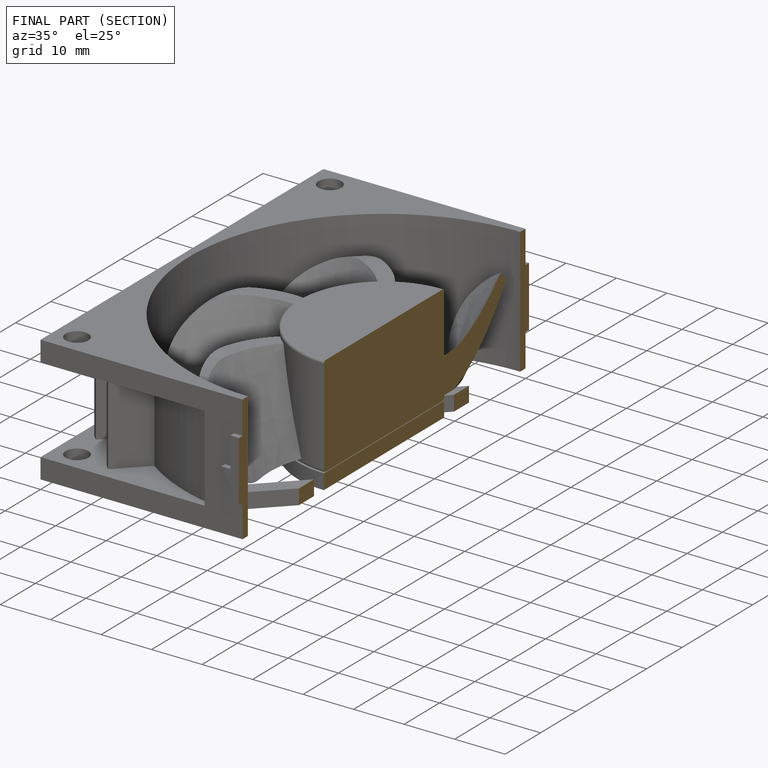
[diagram: finished part — half-section view (interior)]
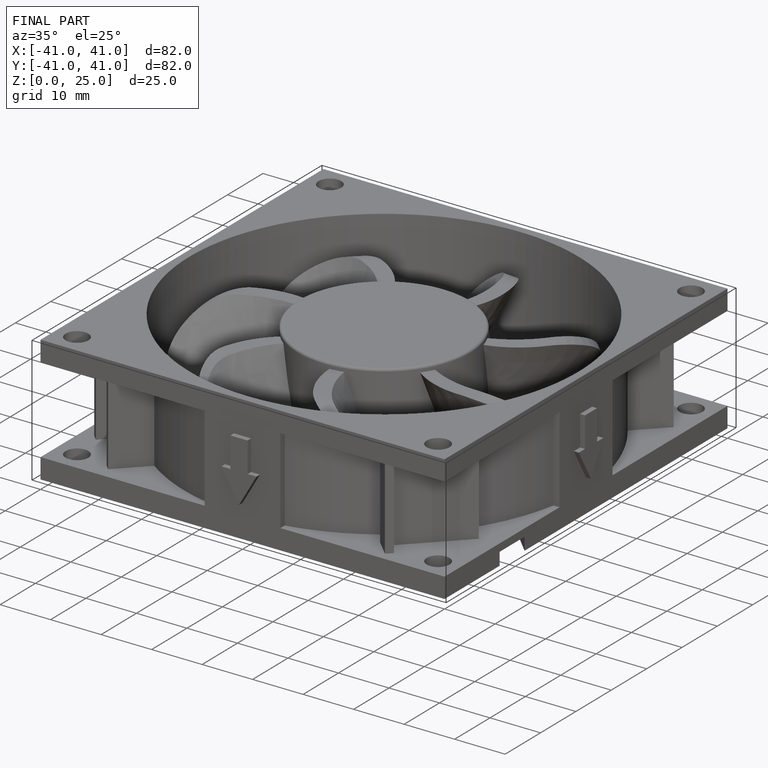
[diagram: finished part — iso view with bounding-box wireframe]
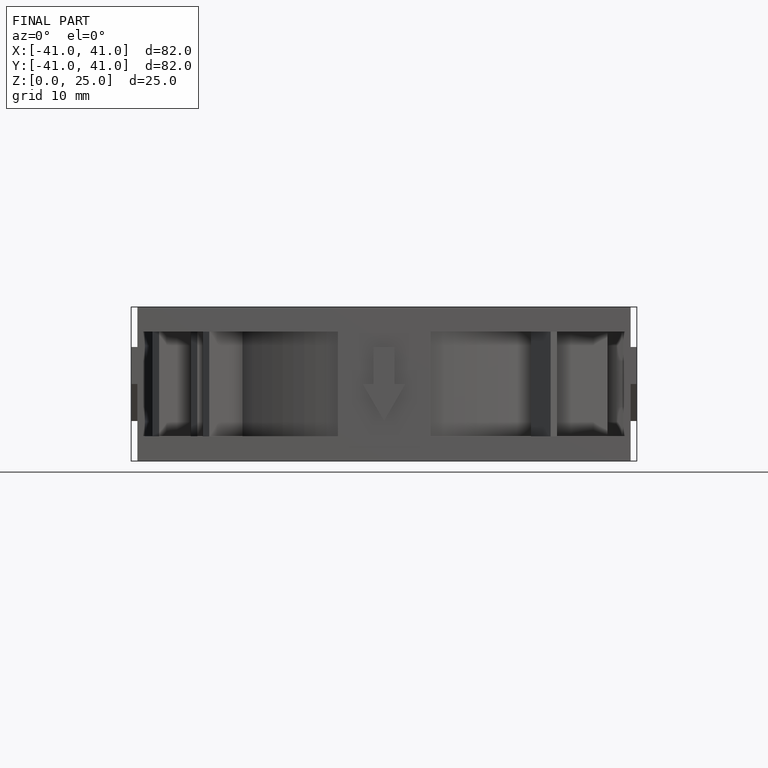
[diagram: finished part — front view with bounding-box wireframe]
